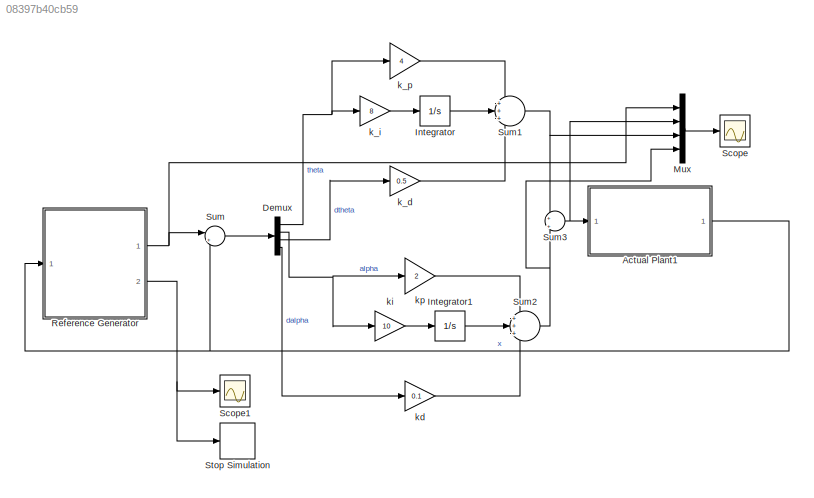
MODEL slx_08397b40cb59
KIND model
CONFIG AbsTol = auto
CONFIG FixedStep = 0.002
CONFIG InitFcn = %% dynparams\nDr = 0.0015; %[Nms/rad]\nDp = 0.0005; %[Nms/rad]\n\nmr = 0.095; %[kg] arm mass\nmp = 0.024; %[kg] pendulum mass\nLr = 0.085; %[m]\nLp = 0.129; %[m]\n\nJr = mr*Lr^2/12;\nJp = (2.53+1.33)/2*1e-4;\n\nKt = 0.042; %[Nm/A]\nRm = 8.4; %[Ohm]\n\n% Km = 0.042; %[Vs/rad] not used (back emf term), low speed means this is negligible.\n\n\nJt = Jr*Jp + mp*(Lp/2)^2*Jr + Jp*mp*Lr^2; \n\ng = 9.81; %[m/s^2] gravity
CONFIG MaxStep = auto
CONFIG MinStep = auto
CONFIG RelTol = 1e-3
CONFIG SampleTimeConstraint = Unconstrained
CONFIG Solver = ode1
CONFIG SolverMode = Auto
CONFIG SolverName = ode1
CONFIG StartTime = 0.0
CONFIG StopTime = 50
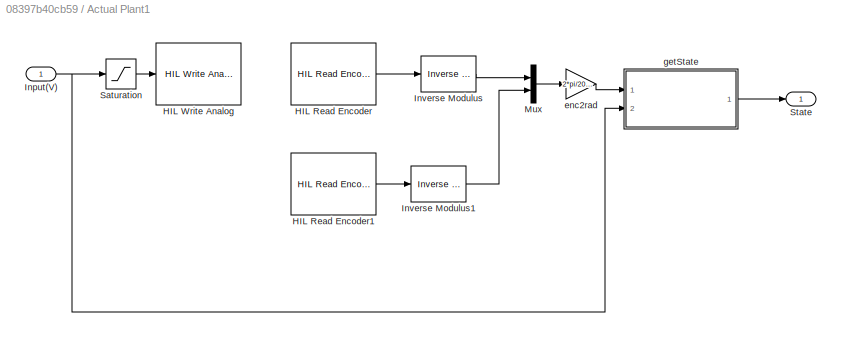
BLOCK [SubSystem] Actual Plant1
  Permissions = ReadOnly
  Ports = [1, 1]
  RequestExecContextInheritance = off
  Variant = off
BLOCK [Reference] Actual Plant1/HIL Read Encoder  REF=quarc_library/Data Acquisition/Generic/Immediate I//O/HIL Read Encoder
  AttributesFormatString = (%<object_name>)
  Ports = [0, 1]
  SourceBlock = quarc_library/Data Acquisition/Generic/Immediate I//O/HIL Read Encoder
  SourceType = HIL Read Encoder
  UserDataPersistent = on
BLOCK [Reference] Actual Plant1/HIL Read Encoder1  REF=quarc_library/Data Acquisition/Generic/Immediate I//O/HIL Read Encoder
  AttributesFormatString = (%<object_name>)
  Ports = [0, 1]
  SourceBlock = quarc_library/Data Acquisition/Generic/Immediate I//O/HIL Read Encoder
  SourceType = HIL Read Encoder
  UserDataPersistent = on
BLOCK [Reference] Actual Plant1/HIL Write Analog  REF=quarc_library/Data Acquisition/Generic/Immediate I//O/HIL Write Analog
  AttributesFormatString = (%<object_name>)
  Ports = [1]
  SourceBlock = quarc_library/Data Acquisition/Generic/Immediate I//O/HIL Write Analog
  SourceType = HIL Write Analog
  UserDataPersistent = on
BLOCK [Inport] Actual Plant1/Input(V)
  IconDisplay = Port number
BLOCK [Reference] Actual Plant1/Inverse Modulus  REF=quarc_library/Discontinuities/Inverse
Modulus
  Ports = [1, 1]
  SourceBlock = quarc_library/Discontinuities/Inverse\nModulus
  SourceType = Inverse Modulus
BLOCK [Reference] Actual Plant1/Inverse Modulus1  REF=quarc_library/Discontinuities/Inverse
Modulus
  Ports = [1, 1]
  SourceBlock = quarc_library/Discontinuities/Inverse\nModulus
  SourceType = Inverse Modulus
BLOCK [Mux] Actual Plant1/Mux
  DisplayOption = bar
  Inputs = 2
  Ports = [2, 1]
BLOCK [Saturate] Actual Plant1/Saturation
  InputPortMap = u0
  LowerLimit = -5
  Ports = [1, 1]
  UpperLimit = 5
BLOCK [Outport] Actual Plant1/State
  IconDisplay = Port number
BLOCK [Gain] Actual Plant1/enc2rad
  Gain = 2*pi/2048
  OutDataTypeStr = Inherit: Inherit via internal rule
  ParamDataTypeStr = Inherit: Inherit via internal rule
  SaturateOnIntegerOverflow = off
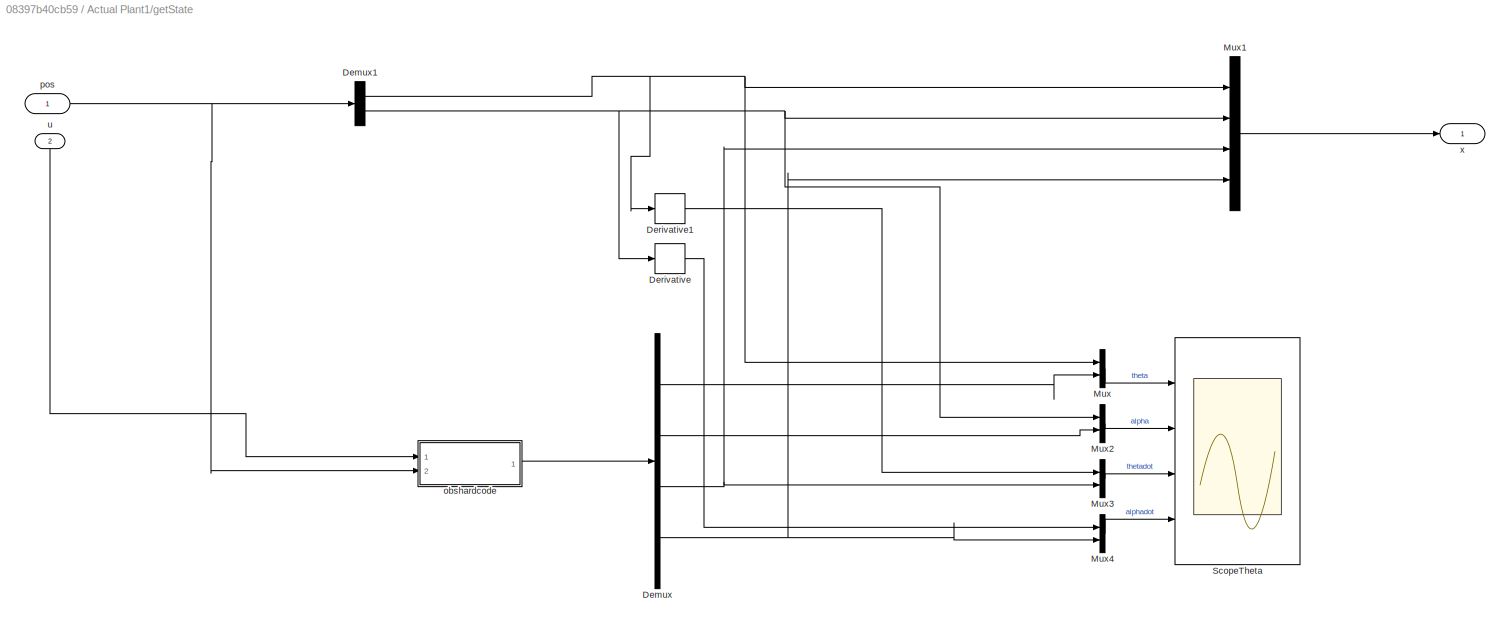
BLOCK [SubSystem] Actual Plant1/getState
  Ports = [2, 1]
  RequestExecContextInheritance = off
  Variant = off
BLOCK [Demux] Actual Plant1/getState/Demux
  DisplayOption = bar
  Ports = [1, 4]
BLOCK [Demux] Actual Plant1/getState/Demux1
  DisplayOption = bar
  Outputs = 2
  Ports = [1, 2]
BLOCK [Derivative] Actual Plant1/getState/Derivative
BLOCK [Derivative] Actual Plant1/getState/Derivative1
BLOCK [Mux] Actual Plant1/getState/Mux
  DisplayOption = bar
  Inputs = 2
  Ports = [2, 1]
BLOCK [Mux] Actual Plant1/getState/Mux1
  DisplayOption = bar
  Ports = [4, 1]
BLOCK [Mux] Actual Plant1/getState/Mux2
  DisplayOption = bar
  Inputs = 2
  Ports = [2, 1]
BLOCK [Mux] Actual Plant1/getState/Mux3
  DisplayOption = bar
  Inputs = 2
  Ports = [2, 1]
BLOCK [Mux] Actual Plant1/getState/Mux4
  DisplayOption = bar
  Inputs = 2
  Ports = [2, 1]
BLOCK [Scope] Actual Plant1/getState/ScopeTheta
  NumInputPorts = 4
  Ports = [4]
  ScopeSpecificationString = C++SS(StrPVP('Open','off'),StrPVP('TimeRange','25'),StrPVP('TickLabels','OneTimeTick'),StrPVP('ShowLegends','on'),StrPVP('LimitDataPoints','off'),StrPVP('MaxDataPoints','5000'),StrPVP('SaveToWorkspace','off'),StrPVP('SaveName','ScopeData3'),StrPVP('YMin','0~-0.2~-2~-4'),StrPVP('YMax','0.5~0.15~4~4'),StrPVP('BlockParamSampleInput','off'),StrPVP('BlockParamSampleTime','-1'),StrPVP('ZoomMode','on'),S...<+675ch>
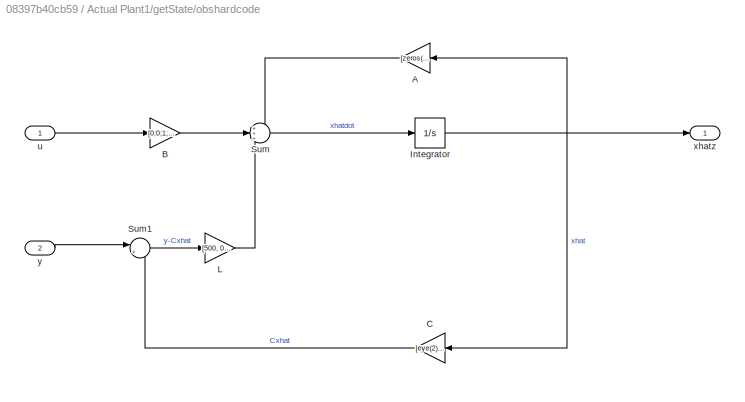
BLOCK [SubSystem] Actual Plant1/getState/obshardcode
  Ports = [2, 1]
  RequestExecContextInheritance = off
  Variant = off
BLOCK [Gain] Actual Plant1/getState/obshardcode/A
  Gain = [zeros(2),eye(2);\n      zeros(2),zeros(2)]
  Multiplication = Matrix(K*u)
  OutDataTypeStr = Inherit: Inherit via internal rule
  ParamDataTypeStr = Inherit: Inherit via internal rule
  SaturateOnIntegerOverflow = off
BLOCK [Gain] Actual Plant1/getState/obshardcode/B
  Gain = [0;0;1;1]
  Multiplication = Matrix(K*u)
  OutDataTypeStr = Inherit: Inherit via internal rule
  ParamDataTypeStr = Inherit: Inherit via internal rule
  SaturateOnIntegerOverflow = off
BLOCK [Gain] Actual Plant1/getState/obshardcode/C
  Gain = [eye(2),zeros(2)]
  Multiplication = Matrix(K*u)
  OutDataTypeStr = Inherit: Inherit via internal rule
  ParamDataTypeStr = Inherit: Inherit via internal rule
  SaturateOnIntegerOverflow = off
BLOCK [Integrator] Actual Plant1/getState/obshardcode/Integrator
  InitialCondition = zeros(4,1)
  Ports = [1, 1]
BLOCK [Gain] Actual Plant1/getState/obshardcode/L
  Gain = [500, 0;\n         0, 500;\n         27000, 0;\n         0, 27000]
  Multiplication = Matrix(K*u)
  OutDataTypeStr = Inherit: Inherit via internal rule
  ParamDataTypeStr = Inherit: Inherit via internal rule
  SaturateOnIntegerOverflow = off
BLOCK [Sum] Actual Plant1/getState/obshardcode/Sum
  IconShape = round
  InputSameDT = off
  Inputs = +++
  OutDataTypeStr = Inherit: Inherit via internal rule
  Ports = [3, 1]
  SaturateOnIntegerOverflow = off
BLOCK [Sum] Actual Plant1/getState/obshardcode/Sum1
  IconShape = round
  InputSameDT = off
  Inputs = |+-
  OutDataTypeStr = Inherit: Inherit via internal rule
  Ports = [2, 1]
  SaturateOnIntegerOverflow = off
BLOCK [Inport] Actual Plant1/getState/obshardcode/u
  IconDisplay = Port number
  PortDimensions = 1
BLOCK [Outport] Actual Plant1/getState/obshardcode/xhatz
  IconDisplay = Port number
BLOCK [Inport] Actual Plant1/getState/obshardcode/y
  IconDisplay = Port number
  Port = 2
  PortDimensions = 2
BLOCK [Inport] Actual Plant1/getState/pos
  IconDisplay = Port number
BLOCK [Inport] Actual Plant1/getState/u
  IconDisplay = Port number
  Port = 2
BLOCK [Outport] Actual Plant1/getState/x
  IconDisplay = Port number
BLOCK [Demux] Demux
  DisplayOption = bar
  Ports = [1, 4]
BLOCK [Integrator] Integrator
  Ports = [1, 1]
BLOCK [Integrator] Integrator1
  Ports = [1, 1]
BLOCK [Mux] Mux
  DisplayOption = bar
  Ports = [4, 1]
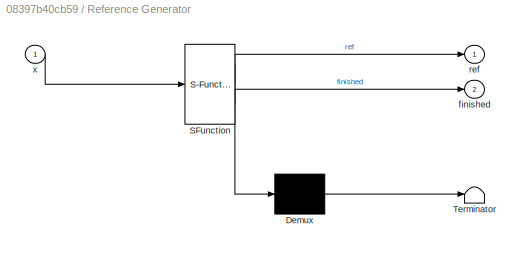
BLOCK [SubSystem] Reference Generator
  ErrorFcn = Stateflow.Translate.translate
  Permissions = ReadOnly
  PermitHierarchicalResolution = ExplicitOnly
  Ports = [1, 2]
  RequestExecContextInheritance = off
  SFBlockType = MATLAB Function
  TreatAsAtomicUnit = on
  Variant = off
BLOCK [Demux] Reference Generator/ Demux 
  Outputs = 1
  Ports = [1, 1]
BLOCK [S-Function] Reference Generator/ SFunction 
  EnableBusSupport = on
  FunctionName = sf_sfun
  PortCounts = [1 3]
  Ports = [1, 3]
  SFunctionDeploymentMode = off
  Tag = Stateflow S-Function thetaalpha 2
BLOCK [Terminator] Reference Generator/ Terminator 
BLOCK [Outport] Reference Generator/finished
  IconDisplay = Port number
  Port = 2
BLOCK [Outport] Reference Generator/ref
  IconDisplay = Port number
BLOCK [Inport] Reference Generator/x
  IconDisplay = Port number
BLOCK [Scope] Scope
  Ports = [1]
  ScopeSpecificationString = Simulink.scopes.TimeScopeBlockCfg('CurrentConfiguration', extmgr.ConfigurationSet(extmgr.Configuration('Core','General UI',true),extmgr.Configuration('Core','Source UI',true),extmgr.Configuration('Sources','WiredSimulink',true,'DataLoggingVariableName','alphathetaResults','DataLogging',true,'DataLoggingSaveFormat','StructureWithTime'),extmgr.Configuration('Visuals','Time Domain',true,'SerializedDi...<+1584ch>
BLOCK [Scope] Scope1
  Ports = [1]
  ScopeSpecificationString = Simulink.scopes.TimeScopeBlockCfg('CurrentConfiguration', extmgr.ConfigurationSet(extmgr.Configuration('Core','General UI',true,'FigureColor',[0.156862745098039 0.156862745098039 0.156862745098039]),extmgr.Configuration('Core','Source UI',true),extmgr.Configuration('Sources','WiredSimulink',true,'DataLoggingVariableName','ScopeData1','DataLoggingSaveFormat','Array','DataLoggingDecimation','1','Dat...<+2785ch>
BLOCK [Stop] Stop Simulation
BLOCK [Sum] Sum
  IconShape = round
  InputSameDT = off
  Inputs = |+-
  OutDataTypeStr = Inherit: Inherit via internal rule
  Ports = [2, 1]
  SaturateOnIntegerOverflow = off
BLOCK [Sum] Sum1
  IconShape = round
  InputSameDT = off
  Inputs = +++
  OutDataTypeStr = Inherit: Inherit via internal rule
  Ports = [3, 1]
  SaturateOnIntegerOverflow = off
BLOCK [Sum] Sum2
  IconShape = round
  InputSameDT = off
  Inputs = +++
  OutDataTypeStr = Inherit: Inherit via internal rule
  Ports = [3, 1]
  SaturateOnIntegerOverflow = off
BLOCK [Sum] Sum3
  IconShape = round
  InputSameDT = off
  Inputs = +|+
  OutDataTypeStr = Inherit: Inherit via internal rule
  Ports = [2, 1]
  SaturateOnIntegerOverflow = off
BLOCK [Gain] k_d
  Gain = 0.5
  OutDataTypeStr = Inherit: Inherit via internal rule
  ParamDataTypeStr = Inherit: Inherit via internal rule
  SaturateOnIntegerOverflow = off
BLOCK [Gain] k_i
  Gain = 8
  OutDataTypeStr = Inherit: Inherit via internal rule
  ParamDataTypeStr = Inherit: Inherit via internal rule
  SaturateOnIntegerOverflow = off
BLOCK [Gain] k_p
  Gain = 4
  OutDataTypeStr = Inherit: Inherit via internal rule
  ParamDataTypeStr = Inherit: Inherit via internal rule
  SaturateOnIntegerOverflow = off
BLOCK [Gain] kd
  Gain = 0.1
  OutDataTypeStr = Inherit: Inherit via internal rule
  ParamDataTypeStr = Inherit: Inherit via internal rule
  SaturateOnIntegerOverflow = off
BLOCK [Gain] ki
  Gain = 10
  OutDataTypeStr = Inherit: Inherit via internal rule
  ParamDataTypeStr = Inherit: Inherit via internal rule
  SaturateOnIntegerOverflow = off
BLOCK [Gain] kp
  Gain = 2
  OutDataTypeStr = Inherit: Inherit via internal rule
  ParamDataTypeStr = Inherit: Inherit via internal rule
  SaturateOnIntegerOverflow = off
LINE Actual Plant1/HIL Read Encoder1:1 -> Actual Plant1/Inverse Modulus1:1
LINE Actual Plant1/HIL Read Encoder:1 -> Actual Plant1/Inverse Modulus:1
NET Actual Plant1/Input(V):1 -> Actual Plant1/Saturation:1, Actual Plant1/getState:2
LINE Actual Plant1/Inverse Modulus1:1 -> Actual Plant1/Mux:2
LINE Actual Plant1/Inverse Modulus:1 -> Actual Plant1/Mux:1
LINE Actual Plant1/Mux:1 -> Actual Plant1/enc2rad:1
LINE Actual Plant1/Saturation:1 -> Actual Plant1/HIL Write Analog:1
LINE Actual Plant1/enc2rad:1 -> Actual Plant1/getState:1
NET Actual Plant1/getState/Demux1:1 -> Actual Plant1/getState/Derivative1:1, Actual Plant1/getState/Mux1:1, Actual Plant1/getState/Mux:1
NET Actual Plant1/getState/Demux1:2 -> Actual Plant1/getState/Derivative:1, Actual Plant1/getState/Mux1:2, Actual Plant1/getState/Mux2:1
LINE Actual Plant1/getState/Demux:1 -> Actual Plant1/getState/Mux:2
LINE Actual Plant1/getState/Demux:2 -> Actual Plant1/getState/Mux2:2
NET Actual Plant1/getState/Demux:3 -> Actual Plant1/getState/Mux1:3, Actual Plant1/getState/Mux3:2
NET Actual Plant1/getState/Demux:4 -> Actual Plant1/getState/Mux1:4, Actual Plant1/getState/Mux4:2
LINE Actual Plant1/getState/Derivative1:1 -> Actual Plant1/getState/Mux3:1
LINE Actual Plant1/getState/Derivative:1 -> Actual Plant1/getState/Mux4:1
LINE Actual Plant1/getState/Mux1:1 -> Actual Plant1/getState/x:1
LINE Actual Plant1/getState/Mux2:1 -> Actual Plant1/getState/ScopeTheta:2
LINE Actual Plant1/getState/Mux3:1 -> Actual Plant1/getState/ScopeTheta:3
LINE Actual Plant1/getState/Mux4:1 -> Actual Plant1/getState/ScopeTheta:4
LINE Actual Plant1/getState/Mux:1 -> Actual Plant1/getState/ScopeTheta:1
LINE Actual Plant1/getState/obshardcode/A:1 -> Actual Plant1/getState/obshardcode/Sum:1
LINE Actual Plant1/getState/obshardcode/B:1 -> Actual Plant1/getState/obshardcode/Sum:2
LINE Actual Plant1/getState/obshardcode/C:1 -> Actual Plant1/getState/obshardcode/Sum1:2
NET Actual Plant1/getState/obshardcode/Integrator:1 -> Actual Plant1/getState/obshardcode/A:1, Actual Plant1/getState/obshardcode/C:1, Actual Plant1/getState/obshardcode/xhatz:1
LINE Actual Plant1/getState/obshardcode/L:1 -> Actual Plant1/getState/obshardcode/Sum:3
LINE Actual Plant1/getState/obshardcode/Sum1:1 -> Actual Plant1/getState/obshardcode/L:1
LINE Actual Plant1/getState/obshardcode/Sum:1 -> Actual Plant1/getState/obshardcode/Integrator:1
LINE Actual Plant1/getState/obshardcode/u:1 -> Actual Plant1/getState/obshardcode/B:1
LINE Actual Plant1/getState/obshardcode/y:1 -> Actual Plant1/getState/obshardcode/Sum1:1
LINE Actual Plant1/getState/obshardcode:1 -> Actual Plant1/getState/Demux:1
NET Actual Plant1/getState/pos:1 -> Actual Plant1/getState/Demux1:1, Actual Plant1/getState/obshardcode:2
LINE Actual Plant1/getState/u:1 -> Actual Plant1/getState/obshardcode:1
LINE Actual Plant1/getState:1 -> Actual Plant1/State:1
NET Actual Plant1:1 -> Reference Generator:1, Sum:2
NET Demux:1 -> k_i:1, k_p:1
NET Demux:2 -> ki:1, kp:1
LINE Demux:3 -> k_d:1
LINE Demux:4 -> kd:1
LINE Integrator1:1 -> Sum2:2
LINE Integrator:1 -> Sum1:2
LINE Mux:1 -> Scope:1
NET Reference Generator:1 -> Mux:1, Sum:1
NET Reference Generator:2 -> Scope1:1, Stop Simulation:1
NET Sum1:1 -> Mux:3, Sum3:1
NET Sum2:1 -> Mux:4, Sum3:2
NET Sum3:1 -> Actual Plant1:1, Mux:2
LINE Sum:1 -> Demux:1
LINE k_d:1 -> Sum1:3
LINE k_i:1 -> Integrator:1
LINE k_p:1 -> Sum1:1
LINE kd:1 -> Sum2:3
LINE ki:1 -> Integrator1:1
LINE kp:1 -> Sum2:1
note: NET lines group one-source signal fan-out (src -> all destinations, sorted); 1:1 wires keep LINE
CHART Reference Generator states=1 transitions=1
  STATE_LABEL 'eML_blk_kernel()'
  STATE_LABEL "SCRIPT:\nfunction [ref, finished] = REFGEN(x)\n%#codegen\n%% Crane Reference Generator: For AMME3500 Lab 3 (2016)\n% \n% Generates three `waypoints' for the crane's horizontal linkage. When the\n% state is settled close to the reference at close to zero velocity, the\n% next waypoint is given (the change is a step change). When all the waypoints \n% have been reached, then the task is finished.\n%\n% Let q1...<+1167ch>"
